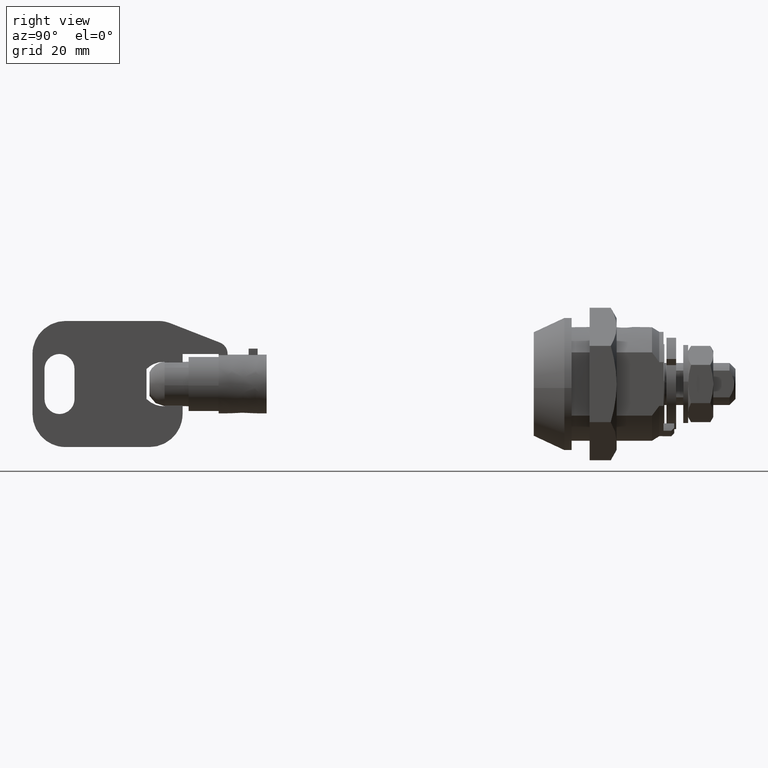
[diagram: clean part render]
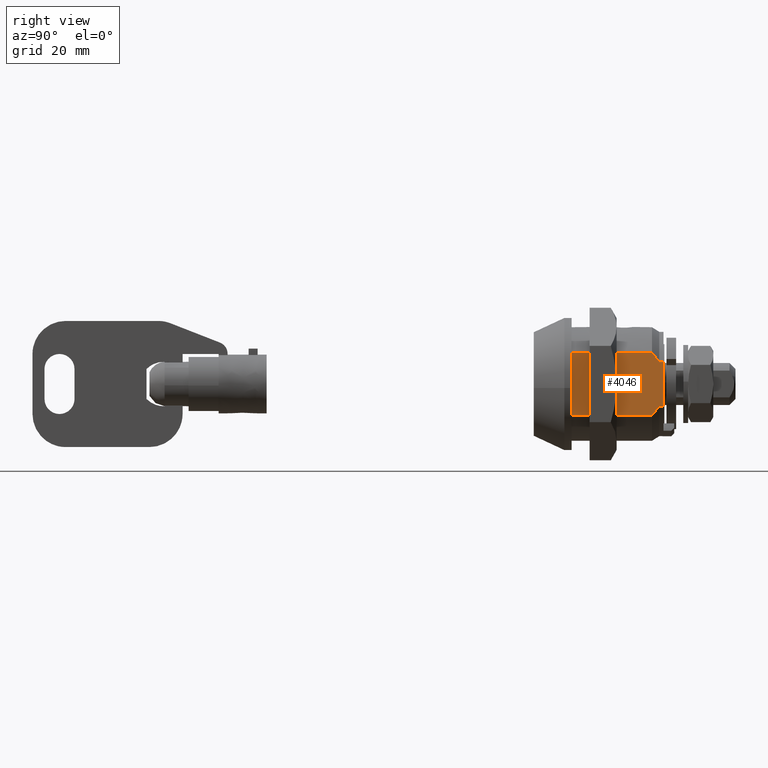
[diagram: same view with one face highlighted and labeled with its STEP entity id]
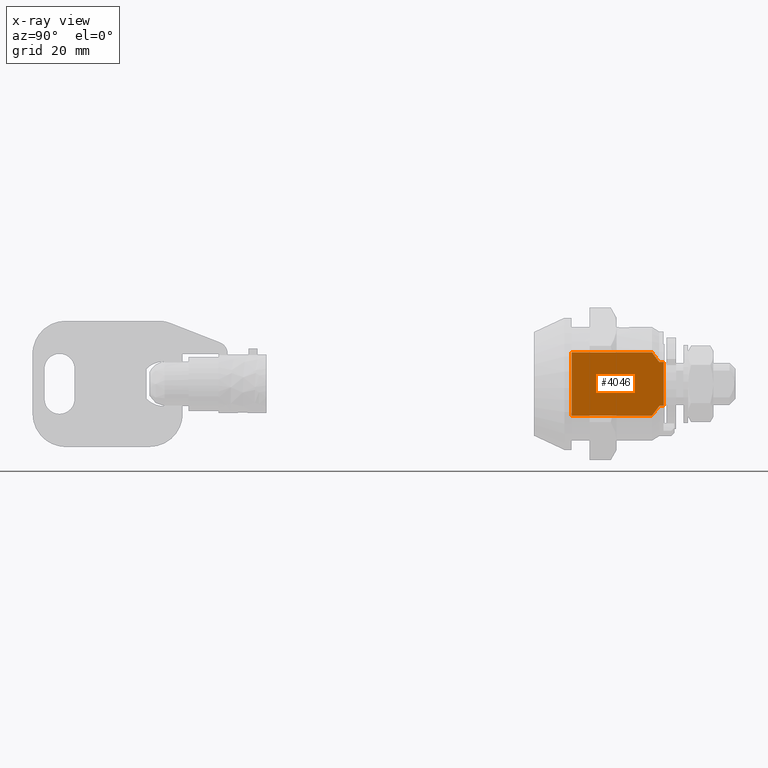
[diagram: x-ray of the same camera — body ghosted, the highlighted face saturated]
A machine part, right view. The second image highlights one B-rep face of the part: STEP entity #4046.
The next image is the same camera in x-ray: the body ghosted, the highlighted face saturated — about 0% of this face is hidden behind the body in this view.
In plain terms, the highlighted face is a freeform B-spline surface patch.
Its self-contained STEP definition (entity closure, byte-faithful):
#3971=CARTESIAN_POINT('',(5.535768284116707,-7.900009000000319,5.803455782737046));
#3972=CARTESIAN_POINT('',(5.535768284116707,-7.900009000000319,-5.803455699074195));
#3973=CARTESIAN_POINT('',(22.364233031919881,-7.900009000000319,5.803455782737046));
#3974=CARTESIAN_POINT('',(22.364233031919881,-7.900009000000319,-5.803455699074195));
#3975=B_SPLINE_SURFACE_WITH_KNOTS('',1,1,((#3971,#3973),(#3972,#3974)),.UNSPECIFIED.,.F.,.F.,.U.,(2,2),(2,2),(0.0,11.606911481811240),(0.0,16.828464747803171),.UNSPECIFIED.);
#3976=CARTESIAN_POINT('',(19.680003525005851,-7.900009452898871,5.276348229989040));
#3977=VERTEX_POINT('',#3976);
#3978=CARTESIAN_POINT('',(6.300003000000000,-7.900010284478889,5.276348785394170));
#3979=VERTEX_POINT('',#3978);
#3980=CARTESIAN_POINT('',(19.680003525005851,-7.900009452898871,5.276348229989040));
#3981=CARTESIAN_POINT('',(6.300003000000000,-7.900010284478889,5.276348785394170));
#3982=QUASI_UNIFORM_CURVE('',1,(#3980,#3981),.UNSPECIFIED.,.F.,.U.);
#3983=EDGE_CURVE('',#3977,#3979,#3982,.T.);
#3984=ORIENTED_EDGE('',*,*,#3983,.T.);
#3985=CARTESIAN_POINT('',(6.300003000000000,-7.900009452898900,-5.276348229989000));
#3986=VERTEX_POINT('',#3985);
#3987=CARTESIAN_POINT('',(6.300003000000000,-7.900009452898900,-5.276348229989000));
#3988=CARTESIAN_POINT('',(6.300003000000000,-7.900010284478889,5.276348785394170));
#3989=QUASI_UNIFORM_CURVE('',1,(#3987,#3988),.UNSPECIFIED.,.F.,.U.);
#3990=EDGE_CURVE('',#3986,#3979,#3989,.T.);
#3991=ORIENTED_EDGE('',*,*,#3990,.F.);
#3992=CARTESIAN_POINT('',(19.680003525005851,-7.900009452898900,-5.276348229989000));
#3993=VERTEX_POINT('',#3992);
#3994=CARTESIAN_POINT('',(19.680003525005851,-7.900009452898900,-5.276348229989000));
#3995=CARTESIAN_POINT('',(6.300003000000000,-7.900009452898900,-5.276348229989000));
#3996=QUASI_UNIFORM_CURVE('',1,(#3994,#3995),.UNSPECIFIED.,.F.,.U.);
#3997=EDGE_CURVE('',#3993,#3986,#3996,.T.);
#3998=ORIENTED_EDGE('',*,*,#3997,.F.);
#3999=CARTESIAN_POINT('',(20.900014200045749,-7.900009000000319,-3.644144371444395));
#4000=VERTEX_POINT('',#3999);
#4001=CARTESIAN_POINT('',(20.900014200045749,-7.900009000000319,-3.644144371444395));
#4002=CARTESIAN_POINT('',(20.799648288638430,-7.900009041327318,-3.801275252175040));
#4003=CARTESIAN_POINT('',(20.695272382231039,-7.900009082813010,-3.956300248511817));
#4004=CARTESIAN_POINT('',(20.444627339349442,-7.900009179565011,-4.312447954002183));
#4005=CARTESIAN_POINT('',(20.296821259148999,-7.900009234523488,-4.510692632021478));
#4006=CARTESIAN_POINT('',(19.993773522636349,-7.900009343983401,-4.899056782975150));
#4007=CARTESIAN_POINT('',(19.838433723284300,-7.900009398519607,-5.089298208731449));
#4008=CARTESIAN_POINT('',(19.680003525005851,-7.900009452898900,-5.276348229989000));
#4009=B_SPLINE_CURVE_WITH_KNOTS('',3,(#4001,#4002,#4003,#4004,#4005,#4006,#4007,#4008),.UNSPECIFIED.,.F.,.U.,(4,2,2,4),(0.827813329645042,0.874999999999999,0.937499999999999,1.0),.UNSPECIFIED.);
#4010=EDGE_CURVE('',#4000,#3993,#4009,.T.);
#4011=ORIENTED_EDGE('',*,*,#4010,.F.);
#4012=CARTESIAN_POINT('',(21.599998999999698,-7.900009000000319,-3.644144371444395));
#4013=VERTEX_POINT('',#4012);
#4014=CARTESIAN_POINT('',(21.599998999999698,-7.900009000000319,-3.644144371444395));
#4015=CARTESIAN_POINT('',(20.900014200045749,-7.900009000000319,-3.644144371444395));
#4016=QUASI_UNIFORM_CURVE('',1,(#4014,#4015),.UNSPECIFIED.,.F.,.U.);
#4017=EDGE_CURVE('',#4013,#4000,#4016,.T.);
#4018=ORIENTED_EDGE('',*,*,#4017,.F.);
#4019=CARTESIAN_POINT('',(21.599998999999698,-7.900009000000319,3.644144371444395));
#4020=VERTEX_POINT('',#4019);
#4021=CARTESIAN_POINT('',(21.599998999999698,-7.900009000000319,-3.644144371444395));
#4022=CARTESIAN_POINT('',(21.599998999999698,-7.900009000000319,3.644144371444395));
#4023=QUASI_UNIFORM_CURVE('',1,(#4021,#4022),.UNSPECIFIED.,.F.,.U.);
#4024=EDGE_CURVE('',#4013,#4020,#4023,.T.);
#4025=ORIENTED_EDGE('',*,*,#4024,.T.);
#4026=CARTESIAN_POINT('',(20.900014200045749,-7.900009000000319,3.644144371444395));
#4027=VERTEX_POINT('',#4026);
#4028=CARTESIAN_POINT('',(20.900014200045749,-7.900009000000319,3.644144371444395));
#4029=CARTESIAN_POINT('',(21.599998999999698,-7.900009000000319,3.644144371444395));
#4030=QUASI_UNIFORM_CURVE('',1,(#4028,#4029),.UNSPECIFIED.,.F.,.U.);
#4031=EDGE_CURVE('',#4027,#4020,#4030,.T.);
#4032=ORIENTED_EDGE('',*,*,#4031,.F.);
#4033=CARTESIAN_POINT('',(19.680003525005851,-7.900009452898871,5.276348229989040));
#4034=CARTESIAN_POINT('',(19.999076031339150,-7.900009000000321,4.899638141885927));
#4035=CARTESIAN_POINT('',(20.305076115207910,-7.900009000000317,4.511131641206380));
#4036=CARTESIAN_POINT('',(20.662457615315500,-7.900009000000319,4.002831758256265));
#4037=CARTESIAN_POINT('',(20.732581198876840,-7.900009000000319,3.900118512796515));
#4038=CARTESIAN_POINT('',(20.834389054464850,-7.900009000000321,3.745996339978199));
#4039=CARTESIAN_POINT('',(20.867411508101409,-7.900009000000321,3.695184475694486));
#4040=CARTESIAN_POINT('',(20.900014200045749,-7.900009000000319,3.644144371444395));
#4041=B_SPLINE_CURVE_WITH_KNOTS('',3,(#4033,#4034,#4035,#4036,#4037,#4038,#4039,#4040),.UNSPECIFIED.,.F.,.U.,(4,2,2,4),(0.0,0.124999999999998,0.156249999999998,0.171522261596442),.UNSPECIFIED.);
#4042=EDGE_CURVE('',#3977,#4027,#4041,.T.);
#4043=ORIENTED_EDGE('',*,*,#4042,.F.);
#4044=EDGE_LOOP('',(#3984,#3991,#3998,#4011,#4018,#4025,#4032,#4043));
#4045=FACE_OUTER_BOUND('',#4044,.T.);
#4046=ADVANCED_FACE('',(#4045),#3975,.T.);